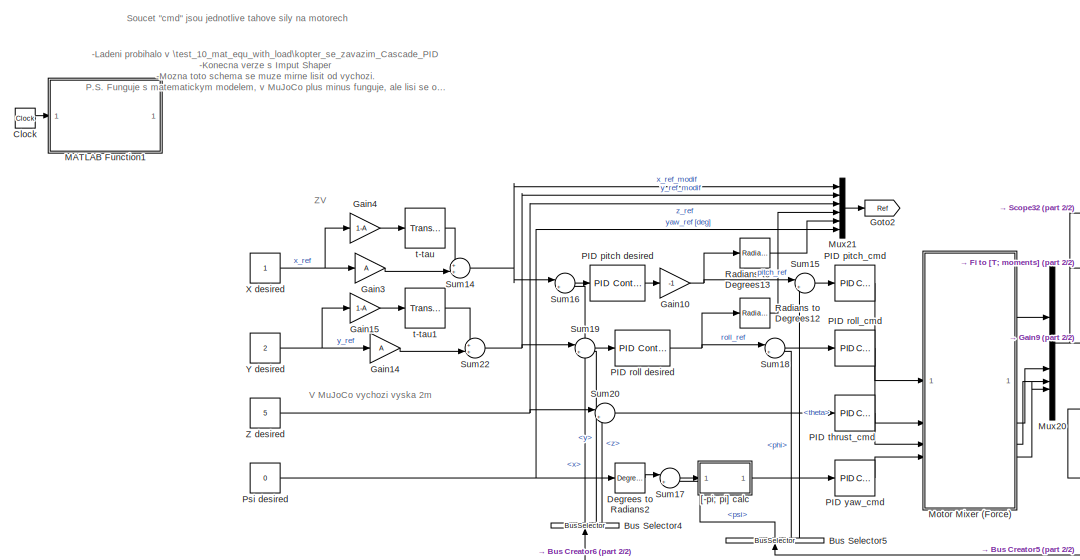
[diagram: root canvas - part 1/2, left side, full height]
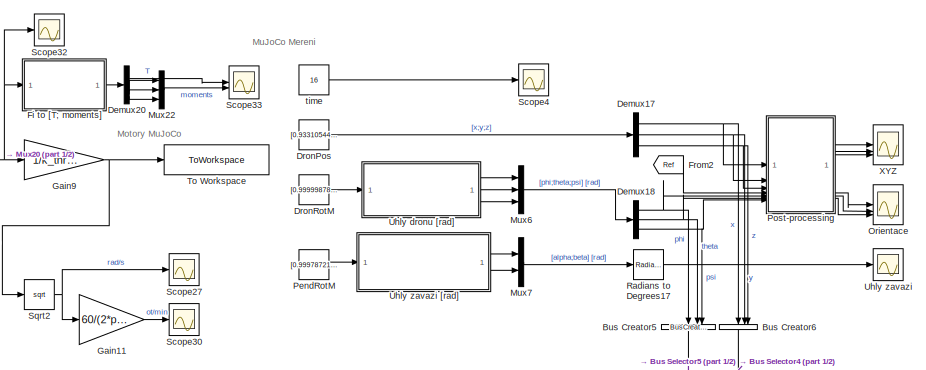
[diagram: root canvas - part 2/2, middle right region]
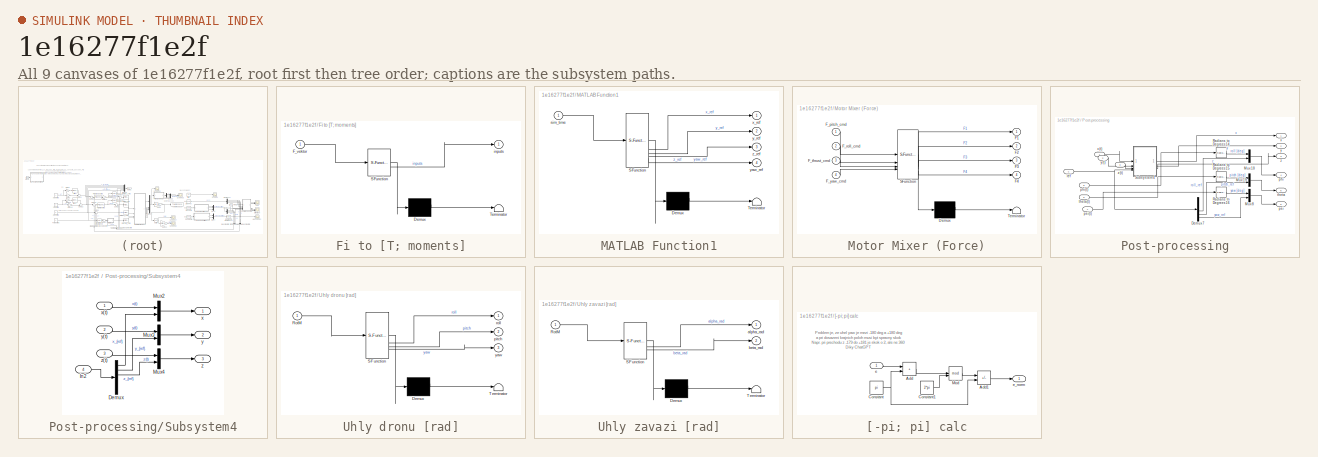
[diagram: thumbnail index - all 9 canvases of the model, root first then tree order]
MODEL slx_1e16277f1e2f
KIND model
CONFIG AbsTol = auto
CONFIG EnableMultiTasking = off
CONFIG FixedStep = 0.025
CONFIG MaxStep = auto
CONFIG MinStep = auto
CONFIG RelTol = 1e-3
CONFIG SampleTimeConstraint = Unconstrained
CONFIG SolverName = ode4
CONFIG StartTime = 0.0
CONFIG StopTime = 16
BLOCK [BusCreator] Bus Creator5
  DisplayOption = bar
  InheritFromInputs = on
  Inputs = 3
  NameLocation = left
BLOCK [BusCreator] Bus Creator6
  DisplayOption = bar
  InheritFromInputs = on
  Inputs = 3
  NameLocation = left
BLOCK [BusSelector] Bus Selector4
  NameLocation = right
  OutputSignals = x,y,z
BLOCK [BusSelector] Bus Selector5
  NameLocation = top
  OutputSignals = psi,phi,theta
BLOCK [Clock] Clock
  Commented = on
BLOCK [Reference] Degrees to Radians2  REF=simulink_extras/Transformations/Degrees to
Radians
  SourceBlock = simulink_extras/Transformations/Degrees to\nRadians
  SourceType = DegreesToRadians
BLOCK [Demux] Demux17
  Outputs = 3
BLOCK [Demux] Demux18
  Outputs = 3
BLOCK [Demux] Demux20
BLOCK [Constant] DronPos
  SampleTime = -1
  Value = [0.933105441533271;1.94691697609637;5.36418360929512]
BLOCK [Constant] DronRotM
  SampleTime = -1
  Value = [0.999998784600213 -6.80970442033522e-06 0.0015590868239967;2.61077206716958e-06 0.999996373364561 0.00269318601463016;-0.00155909950955788 -0.00269317867091212 0.99999515798696]
BLOCK [SubSystem] Fi to [T; moments]
  ErrorFcn = Stateflow.Translate.translate
  PermitHierarchicalResolution = ExplicitOnly
  SFBlockType = MATLAB Function
  TreatAsAtomicUnit = on
BLOCK [Demux] Fi to [T; moments]/ Demux 
  Outputs = 1
BLOCK [S-Function] Fi to [T; moments]/ SFunction 
  EnableBusSupport = on
  FunctionName = sf_sfun
  Parameters = b_moment,k_thrust,l
  PortCounts = [1 2]
  SFcnIsStateOwnerBlock = off
  SFunctionDeploymentMode = off
  Tag = Stateflow S-Function 12
BLOCK [Terminator] Fi to [T; moments]/ Terminator 
BLOCK [Inport] Fi to [T; moments]/F_vektor
BLOCK [Outport] Fi to [T; moments]/inputs
BLOCK [From] From2
  GotoTag = Ref
BLOCK [Gain] Gain10
  Gain = -1
BLOCK [Gain] Gain11
  Gain = 60/(2*pi)
BLOCK [Gain] Gain14
  Gain = A
BLOCK [Gain] Gain15
  Gain = 1-A
BLOCK [Gain] Gain3
  Gain = A
BLOCK [Gain] Gain4
  Gain = 1-A
BLOCK [Gain] Gain9
  Gain = 1/k_thrust
BLOCK [Goto] Goto2
  GotoTag = Ref
BLOCK [SubSystem] MATLAB Function1
  Commented = on
  ErrorFcn = Stateflow.Translate.translate
  PermitHierarchicalResolution = ExplicitOnly
  SFBlockType = MATLAB Function
  TreatAsAtomicUnit = on
BLOCK [Demux] MATLAB Function1/ Demux 
  Outputs = 1
BLOCK [S-Function] MATLAB Function1/ SFunction 
  EnableBusSupport = on
  FunctionName = sf_sfun
  PortCounts = [1 5]
  SFcnIsStateOwnerBlock = off
  SFunctionDeploymentMode = off
  Tag = Stateflow S-Function 5
BLOCK [Terminator] MATLAB Function1/ Terminator 
BLOCK [Inport] MATLAB Function1/sim_time
BLOCK [Outport] MATLAB Function1/x_ref
BLOCK [Outport] MATLAB Function1/y_ref
  Port = 2
BLOCK [Outport] MATLAB Function1/yaw_ref
  Port = 4
BLOCK [Outport] MATLAB Function1/z_ref
  Port = 3
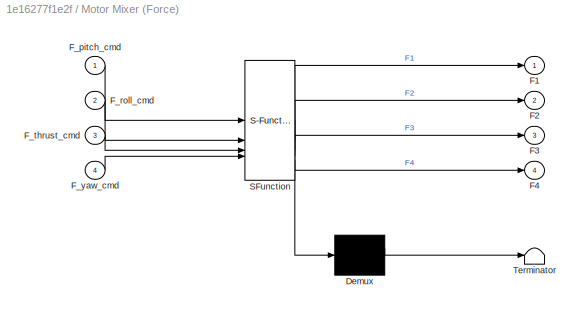
BLOCK [SubSystem] Motor Mixer (Force)
  ErrorFcn = Stateflow.Translate.translate
  PermitHierarchicalResolution = ExplicitOnly
  SFBlockType = MATLAB Function
  TreatAsAtomicUnit = on
BLOCK [Demux] Motor Mixer (Force)/ Demux 
  Outputs = 1
BLOCK [S-Function] Motor Mixer (Force)/ SFunction 
  EnableBusSupport = on
  FunctionName = sf_sfun
  PortCounts = [4 5]
  SFcnIsStateOwnerBlock = off
  SFunctionDeploymentMode = off
  Tag = Stateflow S-Function 25
BLOCK [Terminator] Motor Mixer (Force)/ Terminator 
BLOCK [Outport] Motor Mixer (Force)/F1
BLOCK [Outport] Motor Mixer (Force)/F2
  Port = 2
BLOCK [Outport] Motor Mixer (Force)/F3
  Port = 3
BLOCK [Outport] Motor Mixer (Force)/F4
  Port = 4
BLOCK [Inport] Motor Mixer (Force)/F_pitch_cmd
BLOCK [Inport] Motor Mixer (Force)/F_roll_cmd
  Port = 2
BLOCK [Inport] Motor Mixer (Force)/F_thrust_cmd
  Port = 3
BLOCK [Inport] Motor Mixer (Force)/F_yaw_cmd
  Port = 4
BLOCK [Mux] Mux20
  DisplayOption = bar
BLOCK [Mux] Mux21
  DisplayOption = bar
  Inputs = 6
BLOCK [Mux] Mux22
  DisplayOption = bar
  Inputs = 3
BLOCK [Mux] Mux6
  DisplayOption = bar
  Inputs = 3
BLOCK [Mux] Mux7
  DisplayOption = bar
  Inputs = 2
BLOCK [Scope] Orientace
  Floating = off
  NumInputPorts = 3
  ScopeSpecificationString = Simulink.scopes.TimeScopeBlockCfg('CurrentConfiguration', extmgr.ConfigurationSet(extmgr.Configuration('Core','General UI',true),extmgr.Configuration('Core','Source UI',true),extmgr.Configuration('Sources','WiredSimulink',true,'DataLoggingVariableName','ScopeData1'),extmgr.Configuration('Visuals','Time Domain',true,'PlotType','Stairs','SerializedDisplays',{struct('MinYLimReal','-52.52378','MaxYLim...<+3282ch>
BLOCK [Reference] PID pitch desired  REF=slpidlib/PID Controller
  LibrarySourceBlock = simulink/Continuous/PID Controller
  SourceBlock = slpidlib/PID Controller
  SourceType = PID 1dof
BLOCK [Reference] PID pitch_cmd  REF=slpidlib/PID Controller
  LibrarySourceBlock = simulink/Continuous/PID Controller
  SourceBlock = slpidlib/PID Controller
  SourceType = PID 1dof
BLOCK [Reference] PID roll desired  REF=slpidlib/PID Controller
  LibrarySourceBlock = simulink/Continuous/PID Controller
  SourceBlock = slpidlib/PID Controller
  SourceType = PID 1dof
BLOCK [Reference] PID roll_cmd  REF=slpidlib/PID Controller
  LibrarySourceBlock = simulink/Continuous/PID Controller
  SourceBlock = slpidlib/PID Controller
  SourceType = PID 1dof
BLOCK [Reference] PID thrust_cmd  REF=slpidlib/PID Controller
  LibrarySourceBlock = simulink/Continuous/PID Controller
  SourceBlock = slpidlib/PID Controller
  SourceType = PID 1dof
BLOCK [Reference] PID yaw_cmd  REF=slpidlib/PID Controller
  LibrarySourceBlock = simulink/Continuous/PID Controller
  SourceBlock = slpidlib/PID Controller
  SourceType = PID 1dof
BLOCK [Constant] PendRotM
  SampleTime = -1
  Value = [0.999787211488781 0.0108209416965347 0.017562430477755;-0.0111133535099463 0.999799806042301 0.0166385459562612;-0.017378869849583 -0.0168301829632315 0.999707317080441]
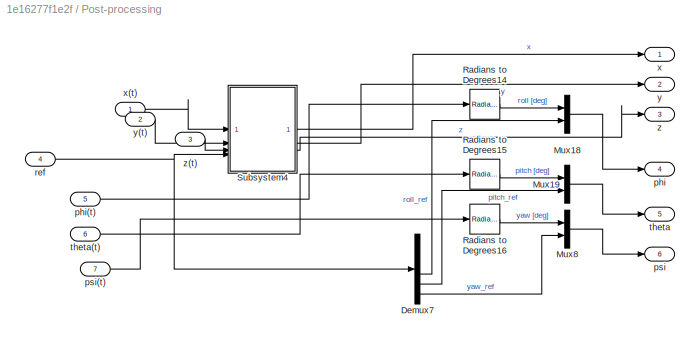
BLOCK [SubSystem] Post-processing
BLOCK [Demux] Post-processing/Demux7
  Outputs = 6
BLOCK [Mux] Post-processing/Mux18
  DisplayOption = bar
  Inputs = 2
BLOCK [Mux] Post-processing/Mux19
  DisplayOption = bar
  Inputs = 2
BLOCK [Mux] Post-processing/Mux8
  DisplayOption = bar
  Inputs = 2
BLOCK [Reference] Post-processing/Radians to Degrees14  REF=simulink_extras/Transformations/Radians
to Degrees
  SourceBlock = simulink_extras/Transformations/Radians\nto Degrees
  SourceType = RadiansToDegrees
BLOCK [Reference] Post-processing/Radians to Degrees15  REF=simulink_extras/Transformations/Radians
to Degrees
  SourceBlock = simulink_extras/Transformations/Radians\nto Degrees
  SourceType = RadiansToDegrees
BLOCK [Reference] Post-processing/Radians to Degrees16  REF=simulink_extras/Transformations/Radians
to Degrees
  SourceBlock = simulink_extras/Transformations/Radians\nto Degrees
  SourceType = RadiansToDegrees
BLOCK [SubSystem] Post-processing/Subsystem4
BLOCK [Demux] Post-processing/Subsystem4/Demux
  Outputs = 6
BLOCK [Inport] Post-processing/Subsystem4/In2
  Port = 4
BLOCK [Mux] Post-processing/Subsystem4/Mux2
  DisplayOption = bar
  Inputs = 2
BLOCK [Mux] Post-processing/Subsystem4/Mux3
  DisplayOption = bar
  Inputs = 2
BLOCK [Mux] Post-processing/Subsystem4/Mux4
  DisplayOption = bar
  Inputs = 2
BLOCK [Outport] Post-processing/Subsystem4/x
BLOCK [Inport] Post-processing/Subsystem4/x(t)
BLOCK [Outport] Post-processing/Subsystem4/y
  Port = 2
BLOCK [Inport] Post-processing/Subsystem4/y(t)
  Port = 2
BLOCK [Outport] Post-processing/Subsystem4/z
  Port = 3
BLOCK [Inport] Post-processing/Subsystem4/z(t)
  Port = 3
BLOCK [Outport] Post-processing/phi
  Port = 4
BLOCK [Inport] Post-processing/phi(t)
  Port = 5
BLOCK [Outport] Post-processing/psi
  Port = 6
BLOCK [Inport] Post-processing/psi(t)
  Port = 7
BLOCK [Inport] Post-processing/ref
  Port = 4
BLOCK [Outport] Post-processing/theta
  Port = 5
BLOCK [Inport] Post-processing/theta(t)
  Port = 6
BLOCK [Outport] Post-processing/x
BLOCK [Inport] Post-processing/x(t)
BLOCK [Outport] Post-processing/y
  Port = 2
BLOCK [Inport] Post-processing/y(t)
  Port = 2
BLOCK [Outport] Post-processing/z
  Port = 3
BLOCK [Inport] Post-processing/z(t)
  Port = 3
BLOCK [Constant] Psi desired
  Value = 0
BLOCK [Reference] Radians to Degrees12  REF=simulink_extras/Transformations/Radians
to Degrees
  SourceBlock = simulink_extras/Transformations/Radians\nto Degrees
  SourceType = RadiansToDegrees
BLOCK [Reference] Radians to Degrees13  REF=simulink_extras/Transformations/Radians
to Degrees
  SourceBlock = simulink_extras/Transformations/Radians\nto Degrees
  SourceType = RadiansToDegrees
BLOCK [Reference] Radians to Degrees17  REF=simulink_extras/Transformations/Radians
to Degrees
  SourceBlock = simulink_extras/Transformations/Radians\nto Degrees
  SourceType = RadiansToDegrees
BLOCK [Scope] Scope27
  Floating = off
  NumInputPorts = 1
  ScopeSpecificationString = Simulink.scopes.TimeScopeBlockCfg('CurrentConfiguration', extmgr.ConfigurationSet(extmgr.Configuration('Core','General UI',true),extmgr.Configuration('Core','Source UI',true),extmgr.Configuration('Sources','WiredSimulink',true,'DataLoggingVariableName','ScopeData6'),extmgr.Configuration('Visuals','Time Domain',true,'SerializedDisplays',{struct('MinYLimReal','389.28844','MaxYLimReal','1191.40251','...<+1576ch>
BLOCK [Scope] Scope30
  Floating = off
  NumInputPorts = 1
  ScopeSpecificationString = Simulink.scopes.TimeScopeBlockCfg('CurrentConfiguration', extmgr.ConfigurationSet(extmgr.Configuration('Core','General UI',true),extmgr.Configuration('Core','Source UI',true),extmgr.Configuration('Sources','WiredSimulink',true,'DataLoggingVariableName','ScopeData7'),extmgr.Configuration('Visuals','Time Domain',true,'SerializedDisplays',{struct('MinYLimReal','3717.43078','MaxYLimReal','11377.05592'...<+1588ch>
BLOCK [Scope] Scope32
  Floating = off
  NumInputPorts = 1
  ScopeSpecificationString = Simulink.scopes.TimeScopeBlockCfg('CurrentConfiguration', extmgr.ConfigurationSet(extmgr.Configuration('Core','General UI',true),extmgr.Configuration('Core','Source UI',true),extmgr.Configuration('Sources','WiredSimulink',true,'DataLoggingVariableName','ScopeData8'),extmgr.Configuration('Visuals','Time Domain',true,'SerializedDisplays',{struct('MinYLimReal','0.41161','MaxYLimReal','12.79551','YLab...<+1618ch>
BLOCK [Scope] Scope33
  Floating = off
  NumInputPorts = 2
  ScopeSpecificationString = Simulink.scopes.TimeScopeBlockCfg('CurrentConfiguration', extmgr.ConfigurationSet(extmgr.Configuration('Core','General UI',true),extmgr.Configuration('Core','Source UI',true),extmgr.Configuration('Sources','WiredSimulink',true,'DataLoggingVariableName','ScopeData9'),extmgr.Configuration('Visuals','Time Domain',true,'SerializedDisplays',{struct('MinYLimReal','3.49322','MaxYLimReal','50.56099','YLab...<+2288ch>
BLOCK [Scope] Scope4
  Floating = off
  NumInputPorts = 1
  ScopeSpecificationString = Simulink.scopes.TimeScopeBlockCfg('CurrentConfiguration', extmgr.ConfigurationSet(extmgr.Configuration('Core','General UI',true),extmgr.Configuration('Core','Source UI',true),extmgr.Configuration('Sources','WiredSimulink',true,'DataLoggingVariableName','ScopeData3'),extmgr.Configuration('Visuals','Time Domain',true,'SerializedDisplays',{struct('MinYLimReal','-2.00000','MaxYLimReal','18.00000','YLa...<+1529ch>
BLOCK [Sqrt] Sqrt2
BLOCK [Sum] Sum14
  Inputs = ++|
BLOCK [Sum] Sum15
  Inputs = |+-
BLOCK [Sum] Sum16
  Inputs = |+-
BLOCK [Sum] Sum17
  Inputs = |+-
BLOCK [Sum] Sum18
  Inputs = |+-
BLOCK [Sum] Sum19
  Inputs = |+-
BLOCK [Sum] Sum20
  Inputs = |+-
BLOCK [Sum] Sum22
  Inputs = ++|
BLOCK [ToWorkspace] To Workspace
  FixptAsFi = on
  MaxDataPoints = inf
  SampleTime = -1
  VariableName = Rotor_AngVel_square
BLOCK [SubSystem] Uhly dronu [rad]
  ErrorFcn = Stateflow.Translate.translate
  PermitHierarchicalResolution = ExplicitOnly
  SFBlockType = MATLAB Function
  TreatAsAtomicUnit = on
BLOCK [Demux] Uhly dronu [rad]/ Demux 
  Outputs = 1
BLOCK [S-Function] Uhly dronu [rad]/ SFunction 
  EnableBusSupport = on
  FunctionName = sf_sfun
  PortCounts = [1 4]
  SFcnIsStateOwnerBlock = off
  SFunctionDeploymentMode = off
  Tag = Stateflow S-Function 4
BLOCK [Terminator] Uhly dronu [rad]/ Terminator 
BLOCK [Inport] Uhly dronu [rad]/RotM
BLOCK [Outport] Uhly dronu [rad]/pitch
  Port = 2
BLOCK [Outport] Uhly dronu [rad]/roll
BLOCK [Outport] Uhly dronu [rad]/yaw
  Port = 3
BLOCK [Scope] Uhly zavazi
  Floating = off
  NumInputPorts = 1
  ScopeSpecificationString = Simulink.scopes.TimeScopeBlockCfg('CurrentConfiguration', extmgr.ConfigurationSet(extmgr.Configuration('Core','General UI',true),extmgr.Configuration('Core','Source UI',true),extmgr.Configuration('Sources','WiredSimulink',true,'DataLoggingVariableName','ScopeData10'),extmgr.Configuration('Visuals','Time Domain',true,'SerializedDisplays',{struct('MinYLimReal','-6.18541','MaxYLimReal','5.63357','YLa...<+1567ch>
BLOCK [SubSystem] Uhly zavazi [rad]
  ErrorFcn = Stateflow.Translate.translate
  PermitHierarchicalResolution = ExplicitOnly
  SFBlockType = MATLAB Function
  TreatAsAtomicUnit = on
BLOCK [Demux] Uhly zavazi [rad]/ Demux 
  Outputs = 1
BLOCK [S-Function] Uhly zavazi [rad]/ SFunction 
  EnableBusSupport = on
  FunctionName = sf_sfun
  PortCounts = [1 3]
  SFcnIsStateOwnerBlock = off
  SFunctionDeploymentMode = off
  Tag = Stateflow S-Function 9
BLOCK [Terminator] Uhly zavazi [rad]/ Terminator 
BLOCK [Inport] Uhly zavazi [rad]/RotM
BLOCK [Outport] Uhly zavazi [rad]/alpha_rad
BLOCK [Outport] Uhly zavazi [rad]/beta_rad
  Port = 2
BLOCK [Constant] X desired
BLOCK [Scope] XYZ
  Floating = off
  NumInputPorts = 3
  ScopeSpecificationString = Simulink.scopes.TimeScopeBlockCfg('CurrentConfiguration', extmgr.ConfigurationSet(extmgr.Configuration('Core','General UI',true,'FigureColor',[0 0 0]),extmgr.Configuration('Core','Source UI',true),extmgr.Configuration('Sources','WiredSimulink',true,'DataLoggingVariableName','ScopeData11'),extmgr.Configuration('Visuals','Time Domain',true,'PlotType','Stairs','SerializedDisplays',{struct('MinYLimRea...<+3580ch>
BLOCK [Constant] Y desired
  Value = 2
BLOCK [Constant] Z desired
  Value = 5
BLOCK [SubSystem] [-pi; pi] calc
BLOCK [Sum] [-pi; pi] calc/Add
  IconShape = rectangular
BLOCK [Sum] [-pi; pi] calc/Add1
  IconShape = rectangular
  Inputs = +-
BLOCK [Constant] [-pi; pi] calc/Constant
  Value = pi
BLOCK [Constant] [-pi; pi] calc/Constant1
  Value = 2*pi
BLOCK [Math] [-pi; pi] calc/Mod
  Operator = mod
BLOCK [Inport] [-pi; pi] calc/e
BLOCK [Outport] [-pi; pi] calc/e_norm
BLOCK [TransportDelay] t-tau
  DelayTime = T
BLOCK [TransportDelay] t-tau1
  DelayTime = T
BLOCK [Constant] time
  SampleTime = -1
  Value = 16
ANNOTATION (root): V MuJoCo vychozi vyska 2m
ANNOTATION (root): - Ladeni probihalo v \test_10_mat_equ_with_load\kopter_se_zavazim_Cascade_PID -Konecna verze s Imput Shaper -Mozna toto schema se muze mirne lisit od vychozi. P.S. Funguje s matematickym modelem, v MuJoCo plus minus funguje, ale lisi se odezvy
ANNOTATION (root): Motory MuJoCo
ANNOTATION (root): MuJoCo Mereni
ANNOTATION (root): Soucet "cmd" jsou jednotlive tahove sily na motorech
ANNOTATION (root): ZV
ANNOTATION [-pi; pi] calc: Problem je, ze uhel yaw je mezi -180 deg a +180 deg a pri dosazeni krajnich poloh musi byt spravny skok Napr. pri prechodu z -179 do +181 je skok o 2, ale ne 360 Diky ChatGPT
LINE Bus Creator5:1 -> Bus Selector5:1
LINE Bus Creator6:1 -> Bus Selector4:1
LINE Bus Selector4:1 -> Sum16:2
LINE Bus Selector4:2 -> Sum19:2
LINE Bus Selector4:3 -> Sum20:2
LINE Bus Selector5:1 -> Sum17:2
LINE Bus Selector5:2 -> Sum18:2
LINE Bus Selector5:3 -> Sum15:2
LINE Clock:1 -> MATLAB Function1:1
LINE Degrees to Radians2:1 -> Sum17:1
NET Demux17:1 -> Bus Creator6:1, Post-processing:1
NET Demux17:2 -> Bus Creator6:2, Post-processing:2
NET Demux17:3 -> Bus Creator6:3, Post-processing:3
NET Demux18:1 -> Bus Creator5:1, Post-processing:5
NET Demux18:2 -> Bus Creator5:2, Post-processing:6
NET Demux18:3 -> Bus Creator5:3, Post-processing:7
LINE Demux20:1 -> Scope33:1
LINE Demux20:2 -> Mux22:1
LINE Demux20:3 -> Mux22:2
LINE Demux20:4 -> Mux22:3
LINE DronPos:1 -> Demux17:1
LINE DronRotM:1 -> Uhly dronu [rad]:1
LINE Fi to [T; moments]:1 -> Demux20:1
LINE From2:1 -> Post-processing:4
NET Gain10:1 -> Radians to Degrees13:1, Sum15:1
LINE Gain11:1 -> Scope30:1
LINE Gain14:1 -> Sum22:2
LINE Gain15:1 -> t-tau1:1
LINE Gain3:1 -> Sum14:2
LINE Gain4:1 -> t-tau:1
NET Gain9:1 -> Sqrt2:1, To Workspace:1
LINE Motor Mixer (Force):1 -> Mux20:1
LINE Motor Mixer (Force):2 -> Mux20:2
LINE Motor Mixer (Force):3 -> Mux20:3
LINE Motor Mixer (Force):4 -> Mux20:4
NET Mux20:1 -> Fi to [T; moments]:1, Gain9:1, Scope32:1
LINE Mux21:1 -> Goto2:1
LINE Mux22:1 -> Scope33:2
LINE Mux6:1 -> Demux18:1
LINE Mux7:1 -> Radians to Degrees17:1
LINE PID pitch desired:1 -> Gain10:1
LINE PID pitch_cmd:1 -> Motor Mixer (Force):1
NET PID roll desired:1 -> Radians to Degrees12:1, Sum18:1
LINE PID roll_cmd:1 -> Motor Mixer (Force):2
LINE PID thrust_cmd:1 -> Motor Mixer (Force):3
LINE PID yaw_cmd:1 -> Motor Mixer (Force):4
LINE PendRotM:1 -> Uhly zavazi [rad]:1
LINE Post-processing/Demux7:4 -> Post-processing/Mux18:2
LINE Post-processing/Demux7:5 -> Post-processing/Mux19:2
LINE Post-processing/Demux7:6 -> Post-processing/Mux8:2
LINE Post-processing/Mux18:1 -> Post-processing/phi:1
LINE Post-processing/Mux19:1 -> Post-processing/theta:1
LINE Post-processing/Mux8:1 -> Post-processing/psi:1
LINE Post-processing/Radians to Degrees14:1 -> Post-processing/Mux18:1
LINE Post-processing/Radians to Degrees15:1 -> Post-processing/Mux19:1
LINE Post-processing/Radians to Degrees16:1 -> Post-processing/Mux8:1
LINE Post-processing/Subsystem4/Demux:1 -> Post-processing/Subsystem4/Mux2:2
LINE Post-processing/Subsystem4/Demux:2 -> Post-processing/Subsystem4/Mux3:2
LINE Post-processing/Subsystem4/Demux:3 -> Post-processing/Subsystem4/Mux4:2
LINE Post-processing/Subsystem4/In2:1 -> Post-processing/Subsystem4/Demux:1
LINE Post-processing/Subsystem4/Mux2:1 -> Post-processing/Subsystem4/x:1
LINE Post-processing/Subsystem4/Mux3:1 -> Post-processing/Subsystem4/y:1
LINE Post-processing/Subsystem4/Mux4:1 -> Post-processing/Subsystem4/z:1
LINE Post-processing/Subsystem4/x(t):1 -> Post-processing/Subsystem4/Mux2:1
LINE Post-processing/Subsystem4/y(t):1 -> Post-processing/Subsystem4/Mux3:1
LINE Post-processing/Subsystem4/z(t):1 -> Post-processing/Subsystem4/Mux4:1
LINE Post-processing/Subsystem4:1 -> Post-processing/x:1
LINE Post-processing/Subsystem4:2 -> Post-processing/y:1
LINE Post-processing/Subsystem4:3 -> Post-processing/z:1
LINE Post-processing/phi(t):1 -> Post-processing/Radians to Degrees14:1
LINE Post-processing/psi(t):1 -> Post-processing/Radians to Degrees16:1
NET Post-processing/ref:1 -> Post-processing/Demux7:1, Post-processing/Subsystem4:4
LINE Post-processing/theta(t):1 -> Post-processing/Radians to Degrees15:1
LINE Post-processing/x(t):1 -> Post-processing/Subsystem4:1
LINE Post-processing/y(t):1 -> Post-processing/Subsystem4:2
LINE Post-processing/z(t):1 -> Post-processing/Subsystem4:3
LINE Post-processing:1 -> XYZ:1
LINE Post-processing:2 -> XYZ:2
LINE Post-processing:3 -> XYZ:3
LINE Post-processing:4 -> Orientace:1
LINE Post-processing:5 -> Orientace:2
LINE Post-processing:6 -> Orientace:3
NET Psi desired:1 -> Degrees to Radians2:1, Mux21:6
LINE Radians to Degrees12:1 -> Mux21:4
LINE Radians to Degrees13:1 -> Mux21:5
LINE Radians to Degrees17:1 -> Uhly zavazi:1
NET Sqrt2:1 -> Gain11:1, Scope27:1
NET Sum14:1 -> Mux21:1, Sum16:1
LINE Sum15:1 -> PID pitch_cmd:1
LINE Sum16:1 -> PID pitch desired:1
LINE Sum17:1 -> [-pi; pi] calc:1
LINE Sum18:1 -> PID roll_cmd:1
LINE Sum19:1 -> PID roll desired:1
LINE Sum20:1 -> PID thrust_cmd:1
NET Sum22:1 -> Mux21:2, Sum19:1
LINE Uhly dronu [rad]:1 -> Mux6:1
LINE Uhly dronu [rad]:2 -> Mux6:2
LINE Uhly dronu [rad]:3 -> Mux6:3
LINE Uhly zavazi [rad]:1 -> Mux7:1
LINE Uhly zavazi [rad]:2 -> Mux7:2
NET X desired:1 -> Gain3:1, Gain4:1
NET Y desired:1 -> Gain14:1, Gain15:1
NET Z desired:1 -> Mux21:3, Sum20:1
LINE [-pi; pi] calc/Add1:1 -> [-pi; pi] calc/e_norm:1
LINE [-pi; pi] calc/Add:1 -> [-pi; pi] calc/Mod:1
LINE [-pi; pi] calc/Constant1:1 -> [-pi; pi] calc/Mod:2
NET [-pi; pi] calc/Constant:1 -> [-pi; pi] calc/Add1:2, [-pi; pi] calc/Add:2
LINE [-pi; pi] calc/Mod:1 -> [-pi; pi] calc/Add1:1
LINE [-pi; pi] calc/e:1 -> [-pi; pi] calc/Add:1
LINE [-pi; pi] calc:1 -> PID yaw_cmd:1
LINE t-tau1:1 -> Sum22:1
LINE t-tau:1 -> Sum14:1
LINE time:1 -> Scope4:1
note: NET lines group one-source signal fan-out (src -> all destinations, sorted); 1:1 wires keep LINE
CHART Uhly dronu [rad] states=1 transitions=1
  STATE_LABEL 'eML_blk_kernel()'
  STATE_LABEL "SCRIPT:\nfunction [roll, pitch, yaw] = quad_attitude(RotM)\n% matice rotace koptery z Python, vuci svetu!!!\n% rotm2eul prevadi na Eulerove uhly\nradians = rotm2eul(RotM, 'ZYX'); % pouzivam poradi ZYX\n\n% roll = kolem x, pitch = kolem y, yaw = kolem z\nyaw = radians(1);\npitch = radians(2);\nroll = radians(3);\nend\n"
CHART MATLAB Function1 states=1 transitions=1
  STATE_LABEL 'eML_blk_kernel()'
  STATE_LABEL 'SCRIPT:\nfunction [x_ref, y_ref, z_ref, yaw_ref] = fcn(sim_time)\nif sim_time < 10\n    z_ref = 8;\n    x_ref = 0;\n    y_ref = 0;\n    yaw_ref = 0;\nelseif sim_time < 20\n    z_ref = 15;\n    x_ref = 10;\n    y_ref = 0;\n    yaw_ref = 45;\nelseif sim_time < 25\n    z_ref = 8;\n    x_ref = 10;\n    y_ref = -5;\n    yaw_ref = -45;\nelseif sim_time < 30\n    z_ref = 10;\n    x_ref = -5;\n    y_ref = -10;\n    yaw_ref = ...<+215ch>'
CHART Uhly zavazi [rad] states=1 transitions=1
  STATE_LABEL 'eML_blk_kernel()'
  STATE_LABEL 'SCRIPT:\nfunction [alpha_rad, beta_rad] = pend_orient(RotM)\n% Расчет углов альфа и бета маятника\n\n% Вектор маятника\nrope_vector = RotM * [0; 0; -1];\n\n% Расчет угла альфа\nrope_vector_xz = rope_vector([1, 3]); % Компоненты x и z\nz_axis = [0; -1];\ncos_alpha = dot(rope_vector_xz, z_axis) / (norm(rope_vector_xz) * norm(z_axis));\ncos_alpha = max(-1, min(1, cos_alpha)); % Ограничиваем в диапазоне [-1, 1]\n...<+530ch>'
CHART Fi to [T; moments] states=1 transitions=1
  STATE_LABEL 'eML_blk_kernel()'
  STATE_LABEL 'SCRIPT:\nfunction inputs = fcn(F_vektor, k_thrust, b_moment, l)\n% Dle X tvaru kvadrokoptery dopocitavam \n% celkovou tahovou silu T a tri momenty\nF1 = F_vektor(1);\nF2 = F_vektor(2);\nF3 = F_vektor(3);\nF4 = F_vektor(4);\n\nT = F1+F2+F3+F4;\nTau_phi = l*(F1+F4-F2-F3);\nTau_theta = l*(F3+F4-F1-F2);\nTau_psi = b_moment/k_thrust*(F1-F2+F3-F4);\n\ninputs = [T; Tau_phi; Tau_theta; Tau_psi];\n'
CHART Motor Mixer (Force) states=1 transitions=1
  STATE_LABEL 'eML_blk_kernel()'
  STATE_LABEL 'SCRIPT:\nfunction [F1, F2, F3, F4] = fcn(F_pitch_cmd, F_roll_cmd, F_thrust_cmd, F_yaw_cmd)\n\n% _cmd definuji jednotlive tahove sily Ti na motorech\n% -> lze jednoduse prepocitat na nutne otacky\nF1 = F_thrust_cmd+F_roll_cmd-F_pitch_cmd+F_yaw_cmd; %[N]\nF2 = F_thrust_cmd-F_roll_cmd-F_pitch_cmd-F_yaw_cmd;\nF3 = F_thrust_cmd-F_roll_cmd+F_pitch_cmd+F_yaw_cmd;\nF4 = F_thrust_cmd+F_roll_cmd+F_pitch_cmd-F_yaw_c...<+3ch>'
CHART  states=0 transitions=0
CHART  states=0 transitions=0
CHART  states=0 transitions=0
CHART  states=0 transitions=0
CHART  states=0 transitions=0
